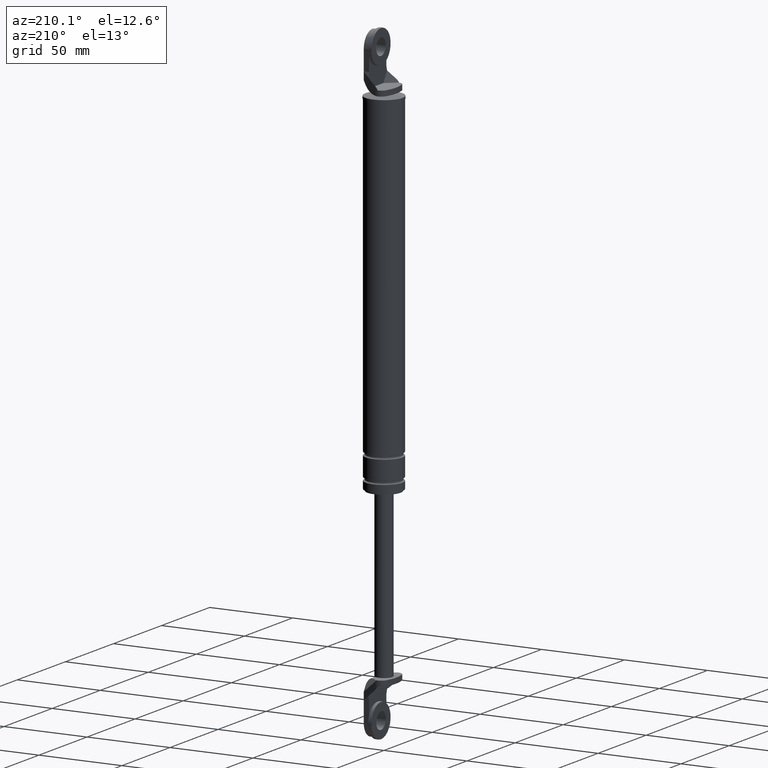
[diagram: clean part render]
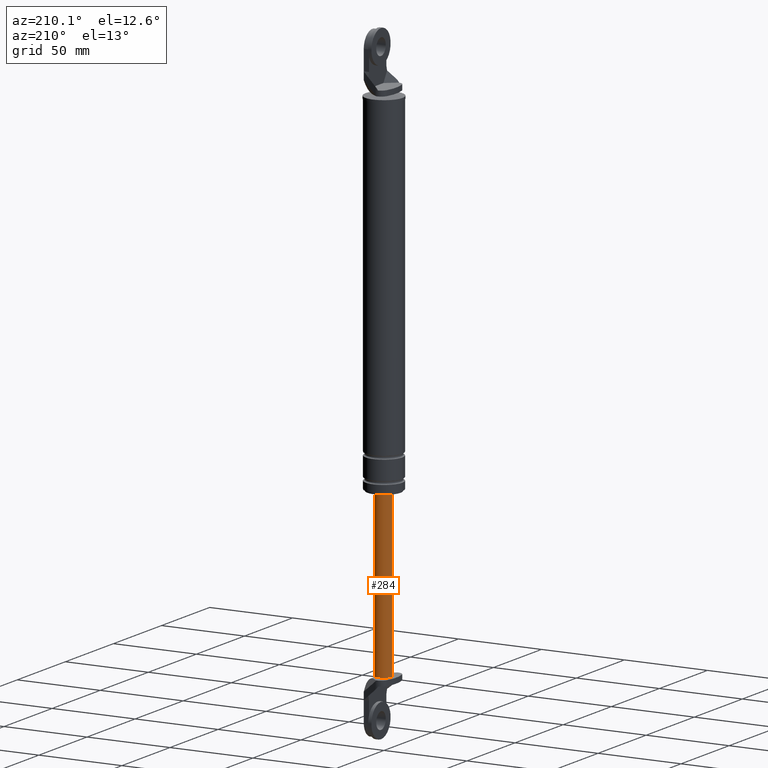
[diagram: same view with one face highlighted and labeled with its STEP entity id]
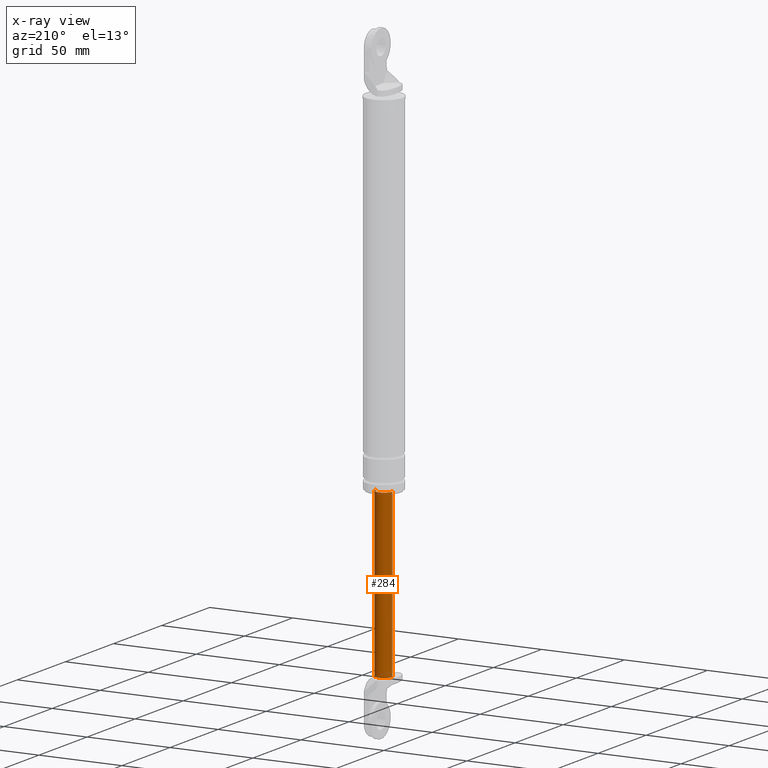
[diagram: x-ray of the same camera — body ghosted, the highlighted face saturated]
A machine part, auxiliary view. The second image highlights one B-rep face of the part: STEP entity #284.
The next image is the same camera in x-ray: the body ghosted, the highlighted face saturated — about 0% of this face is hidden behind the body in this view.
In plain terms, the highlighted cylindrical surface (edge-blend (fillet) strip) has radius 5 mm, axis along (0, 0, 1).
Its self-contained STEP definition (entity closure, byte-faithful):
#284=ADVANCED_FACE('',(#1098),#1097,.T.);
#1097=CYLINDRICAL_SURFACE('',#1757,5.00000000000E+000);
#1098=FACE_OUTER_BOUND('',#1758,.T.);
#1754=CARTESIAN_POINT('',(0.00000000000E+000,3.58204186421E-014,0.00000000000E+000));
#1755=DIRECTION('',(-0.00000000000E+000,-0.00000000000E+000,1.00000000000E+000));
#1756=DIRECTION('',(1.00000000000E+000,0.00000000000E+000,0.00000000000E+000));
#1757=AXIS2_PLACEMENT_3D('',#1754,#1755,#1756);
#1758=EDGE_LOOP('',(#2148,#2149,#2150,#2151,#2152));
#2148=ORIENTED_EDGE('',*,*,#2349,.F.);
#2149=ORIENTED_EDGE('',*,*,#2353,.F.);
#2150=ORIENTED_EDGE('',*,*,#2337,.F.);
#2151=ORIENTED_EDGE('',*,*,#2340,.F.);
#2152=ORIENTED_EDGE('',*,*,#2354,.T.);
#2337=EDGE_CURVE('',#3199,#3549,#3550,.T.);
#2340=EDGE_CURVE('',#3562,#3199,#3569,.T.);
#2349=EDGE_CURVE('',#3620,#3619,#3627,.T.);
#2353=EDGE_CURVE('',#3549,#3620,#3651,.T.);
#2354=EDGE_CURVE('',#3562,#3619,#3657,.T.);
#3199=VERTEX_POINT('',#4183);
#3549=VERTEX_POINT('',#4391);
#3550=CIRCLE('',#4395,5.00000000000E+000);
#3562=VERTEX_POINT('',#4400);
#3569=CIRCLE('',#4408,5.00000000000E+000);
#3619=VERTEX_POINT('',#4435);
#3620=VERTEX_POINT('',#4436);
#3627=CIRCLE('',#4444,5.00000000000E+000);
#3651=(BOUNDED_CURVE() B_SPLINE_CURVE(1,(#4453,#4454),.UNSPECIFIED.,.F.,.F.) B_SPLINE_CURVE_WITH_KNOTS((2,2),(8.33333332085E-002,9.16666666563E-001),.UNSPECIFIED.) CURVE() GEOMETRIC_REPRESENTATION_ITEM() RATIONAL_B_SPLINE_CURVE((1.00000000000E+000,1.00000000000E+000)) REPRESENTATION_ITEM('') );
#3657=(BOUNDED_CURVE() B_SPLINE_CURVE(1,(#4455,#4456),.UNSPECIFIED.,.F.,.F.) B_SPLINE_CURVE_WITH_KNOTS((2,2),(8.33333333333E-002,9.16666666667E-001),.UNSPECIFIED.) CURVE() GEOMETRIC_REPRESENTATION_ITEM() RATIONAL_B_SPLINE_CURVE((7.50000000000E-001,7.50000000000E-001)) REPRESENTATION_ITEM('') );
#4183=CARTESIAN_POINT('',(2.00000000000E+000,4.58257569496E+000,-2.23000015000E+002));
#4391=CARTESIAN_POINT('',(5.00000000000E+000,-1.00793243772E-011,-2.23000015000E+002));
#4392=CARTESIAN_POINT('',(0.00000000000E+000,3.58204186421E-014,-2.23000015000E+002));
#4393=DIRECTION('',(0.00000000000E+000,0.00000000000E+000,-1.00000000000E+000));
#4394=DIRECTION('',(4.00000000000E-001,9.16515138991E-001,0.00000000000E+000));
#4395=AXIS2_PLACEMENT_3D('',#4392,#4393,#4394);
#4400=CARTESIAN_POINT('',(-5.00000000000E+000,8.97827334275E-007,-2.23000015000E+002));
#4405=CARTESIAN_POINT('',(0.00000000000E+000,3.58204186421E-014,-2.23000015000E+002));
#4406=DIRECTION('',(0.00000000000E+000,0.00000000000E+000,-1.00000000000E+000));
#4407=DIRECTION('',(1.00000000000E+000,-0.00000000000E+000,-0.00000000000E+000));
#4408=AXIS2_PLACEMENT_3D('',#4405,#4406,#4407);
#4435=CARTESIAN_POINT('',(-5.00000000000E+000,3.58204186421E-014,-1.24000015000E+002));
#4436=CARTESIAN_POINT('',(5.00000000000E+000,3.61192557345E-014,-1.24000015000E+002));
#4441=CARTESIAN_POINT('',(0.00000000000E+000,3.58204186421E-014,-1.24000015000E+002));
#4442=DIRECTION('',(0.00000000000E+000,0.00000000000E+000,1.00000000000E+000));
#4443=DIRECTION('',(-1.00000000000E+000,-1.22460635382E-016,0.00000000000E+000));
#4444=AXIS2_PLACEMENT_3D('',#4441,#4442,#4443);
#4453=CARTESIAN_POINT('',(5.00000000000E+000,3.58204186421E-014,-2.23000015015E+002));
#4454=CARTESIAN_POINT('',(5.00000000000E+000,3.58204186421E-014,-1.24000015012E+002));
#4455=CARTESIAN_POINT('',(-5.00000000000E+000,3.55271367880E-014,-2.23000015000E+002));
#4456=CARTESIAN_POINT('',(-5.00000000000E+000,3.55271367880E-014,-1.24000015000E+002));